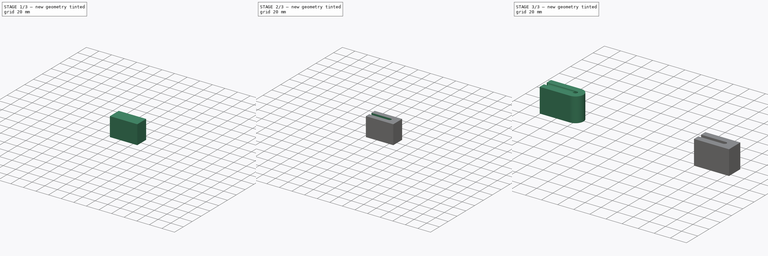
[diagram: build sequence overview — one tinted view per stage of 3, left to right]
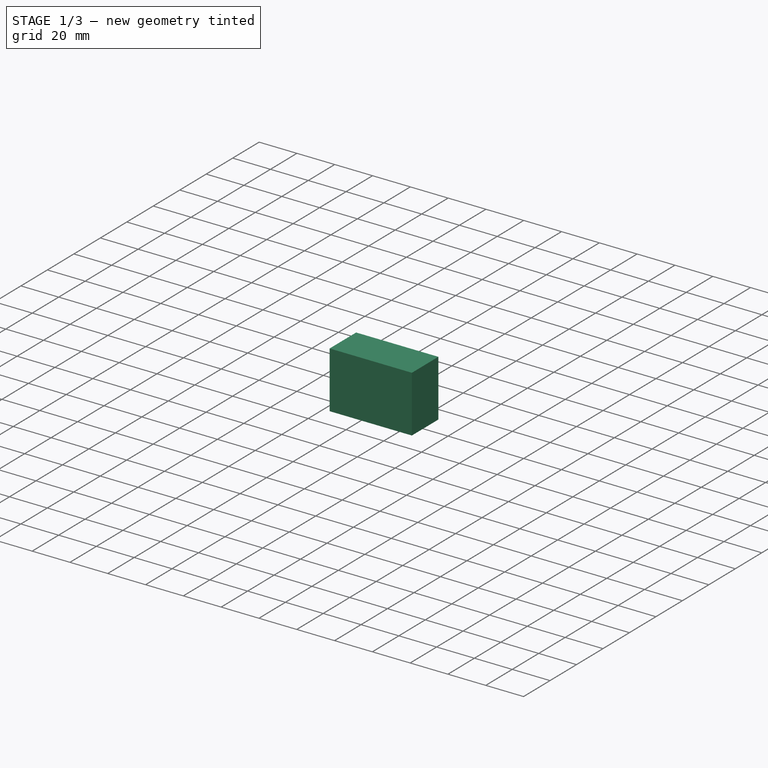
[diagram: stage 1 of 3 — iso view after this stage's code; geometry added in this stage tinted green]
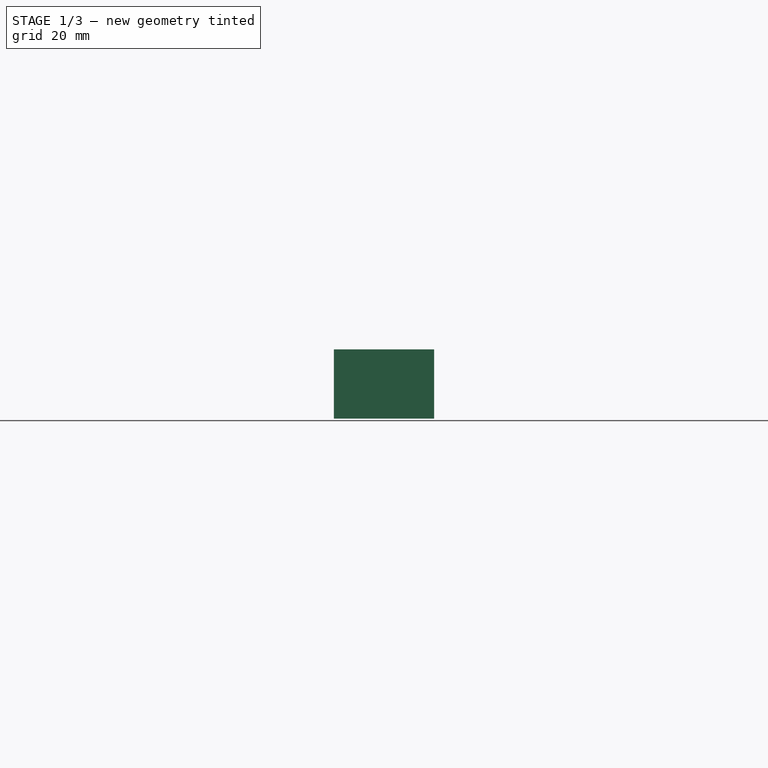
[diagram: stage 1 of 3 — front view after this stage's code; geometry added in this stage tinted green]
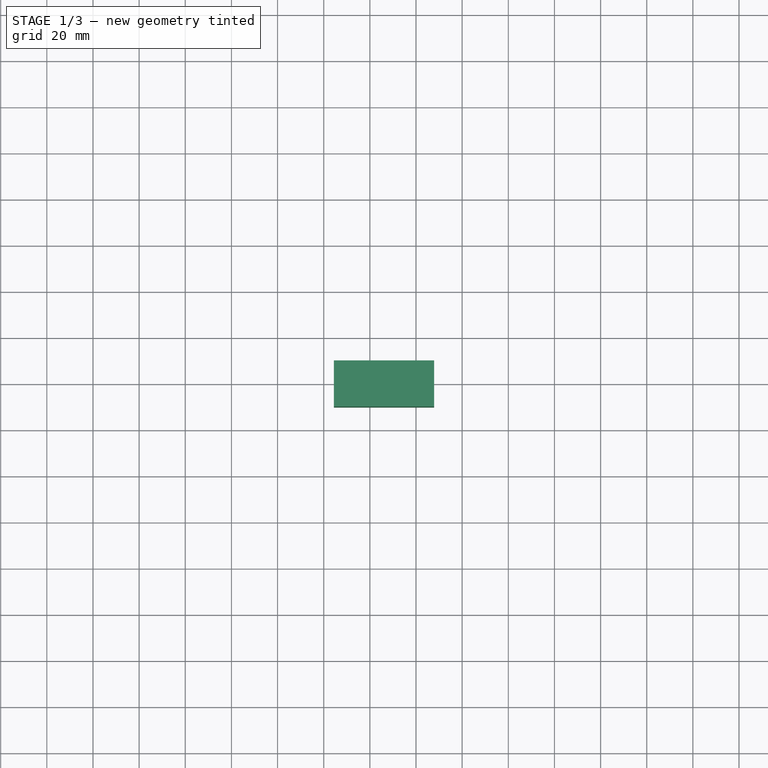
[diagram: stage 1 of 3 — top view after this stage's code; geometry added in this stage tinted green]
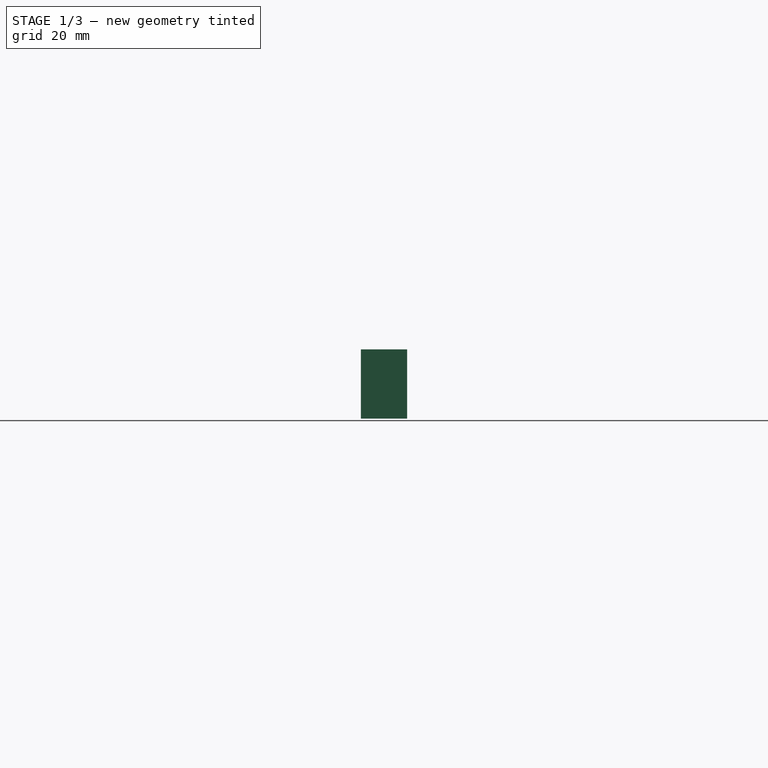
[diagram: stage 1 of 3 — right view after this stage's code; geometry added in this stage tinted green]
FCSTD DOCUMENT  (FreeCAD 1.1R41446 (Git))
Label: Загибалка
License: All rights reserved
LicenseURL: https://en.wikipedia.org/wiki/All_rights_reserved
objects: Sketcher::SketchObject×6, App::Point×4, Part::DatumPlane×4, PartDesign::Body×4, PartDesign::Pad×2, PartDesign::Pocket×2, PartDesign::AdditivePipe×1, PartDesign::SubShapeBinder×1, Part::Cut×1, PartDesign::FeatureBase×1
note: 35 computed .brp shape members not serialized (recipe doc carries the construction recipe); baked Part::Feature solids carry a one-line shape summary decoded from their .brp

FEATURE [PartDesign::Body] Body  label="Тело"
  AllowCompound = false
  Group = -> [Sketch,Pad,DatumPlane,Sketch001,Pocket]
  Origin = -> Origin
  Tip = -> Pocket
FEATURE [App::Point] Origin003  label="Начало координат002"
  Role = Origin
FEATURE [App::Point] Origin005  label="Начало координат004"
  Role = Origin
FEATURE [Sketcher::SketchObject] Sketch002
  ArcFitTolerance = 1e-06
  AttachmentSupport = -> [Origin002]
  ExternalTypes = [0]
  FullyConstrained = false
  MakeInternals = false
  MapMode = 5
  Placement = pos=(0,0,0) rot=(1,0,0;1.5708rad)
  sketch-geometry (6):
    g0: ArcOfCircle CenterX=-37.8284 CenterY=22.5 CenterZ=0 NormalX=0 NormalY=0 NormalZ=1 AngleXU=0 Radius=7.5 StartAngle=0 EndAngle=1.5708
    g1: ArcOfCircle CenterX=-63.5311 CenterY=22.5 CenterZ=0 NormalX=0 NormalY=0 NormalZ=1 AngleXU=0 Radius=7.5 StartAngle=1.5708 EndAngle=3.57792
    g2: LineSegment StartX=-37.8284 StartY=30 StartZ=0 EndX=-63.5311 EndY=30 EndZ=0
    g3: LineSegment StartX=-70.3284 StartY=19.3304 StartZ=0 EndX=-61.3145 EndY=0 EndZ=0
    g4: LineSegment StartX=-30.3284 StartY=22.5 StartZ=0 EndX=-30.3284 EndY=0 EndZ=0
    g5: LineSegment [constr] StartX=-70.3284 StartY=19.3304 StartZ=0 EndX=-59.2332 EndY=19.3304 EndZ=0
  constraints (15):
    c: PointOnObject(g4,g-1)
    c: Horizontal(g2)
    c: Vertical(g4)
    c: Tangent(g2,g0) = -1.5708
    c: Tangent(g2,g1) = -1.5708
    c: Equal(g0,g1)
    c: Tangent(g3,g1) = -1.5708
    c: Tangent(g4,g0) = 1.5708
    c: DistanceX(g1,g0) = 40
    c: Radius(g1) = 7.5
    c: Coincident(g5,g1)
    c: Angle(g3,g5) = 1.13446
    c: Horizontal(g5)
    c: DistanceY(g4,g0) = 30
    c: PointOnObject(g3,g-1)
FEATURE [Part::DatumPlane] DatumPlane001
  AttachmentSupport = -> [Sketch002]
  MapMode = 7
  Placement = pos=(-30.3284,0,0) rot=(0,0,1;0rad)
FEATURE [Sketcher::SketchObject] Sketch003
  ArcFitTolerance = 1e-06
  AttachmentSupport = -> [DatumPlane001]
  ExternalTypes = [0]
  FullyConstrained = true
  MakeInternals = false
  MapMode = 5
  Placement = pos=(-30.3284,0,0) rot=(0,0,1;0rad)
  sketch-geometry (6):
    g0: ArcOfCircle CenterX=-2.5 CenterY=4.353e-13 CenterZ=0 NormalX=0 NormalY=0 NormalZ=1 AngleXU=0 Radius=2.5 StartAngle=1.5708 EndAngle=4.71239
    g1: ArcOfCircle CenterX=2.5 CenterY=0 CenterZ=0 NormalX=0 NormalY=0 NormalZ=1 AngleXU=0 Radius=2.5 StartAngle=4.71239 EndAngle=7.85398
    g2: LineSegment StartX=-2.5 StartY=2.5 StartZ=0 EndX=2.5 EndY=2.5 EndZ=0
    g3: LineSegment StartX=2.5 StartY=-2.5 StartZ=0 EndX=-2.5 EndY=-2.5 EndZ=0
    g4: GeomPoint X=-5 Y=0 Z=0
    g5: LineSegment [constr] StartX=-5 StartY=0 StartZ=0 EndX=5 EndY=0 EndZ=0
  constraints (14):
    c: PointOnObject(g4,g0)
    c: Coincident(g5,g4)
    c: PointOnObject(g5,g1)
    c: Horizontal(g5)
    c: Tangent(g2,g0) = 1.5708
    c: Tangent(g2,g1) = 1.5708
    c: Tangent(g3,g1) = 1.5708
    c: Tangent(g3,g0) = 1.5708
    c: Equal(g1,g0)
    c: Horizontal(g2)
    c: PointOnObject(g1,g5)
    c: DistanceX(g4,g5) = 10
    c: Radius(g0) = 2.5
    c: Symmetric(g4,g5,g-1)
FEATURE [PartDesign::AdditivePipe] AdditivePipe
  AuxiliaryCurvilinear = true
  AuxiliarySpineTangent = false
  Binormal = (0,0,0)
  Mode = 0
  Placement = pos=(-30.3284,0,0) rot=(0,0,1;0rad)
  Profile = -> Sketch003
  Refine = true
  Spine = -> Sketch002
  SpineTangent = false
  Suppressed = false
  Transformation = 0
  Transition = 1
FEATURE [PartDesign::Body] Body001  label="Тело001"
  AllowCompound = false
  Group = -> [Sketch002,DatumPlane001,Sketch003,AdditivePipe]
  Origin = -> Origin002
  Placement = pos=(225.7,0,0) rot=(0,0,1;0rad)
  Tip = -> AdditivePipe
FEATURE [PartDesign::SubShapeBinder] Binder
  BindCopyOnChange = 0
  BindMode = 0
  ClaimChildren = false
  Context = -> Body002 [Binder.]
  Fuse = false
  MakeFace = true
  OffsetFill = false
  OffsetIntersection = false
  OffsetJoinType = 0
  OffsetOpenResult = false
  PartialLoad = false
  Refine = true
  Relative = true
  Support = -> [Body001[AdditivePipe.Face11,AdditivePipe.Face7,AdditivePipe.Face6,AdditivePipe.Face1,AdditivePipe.Face14]]
  _Version = 2
FEATURE [Part::DatumPlane] DatumPlane002
  AttachmentSupport = -> [Binder]
  MapMode = 5
  Placement = pos=(0,0,0) rot=(1,0,0;3.14159rad)
FEATURE [Sketcher::SketchObject] Sketch004
  ArcFitTolerance = 1e-06
  AttachmentSupport = -> [DatumPlane002]
  ExternalGeometry = -> [Binder]
  ExternalTypes = [0,0,0,0,0,0]
  FullyConstrained = true
  MakeInternals = false
  MapMode = 5
  Placement = pos=(0,0,0) rot=(1,0,0;3.14159rad)
  sketch-geometry (8):
    g0: LineSegment StartX=164.385 StartY=-10 StartZ=0 EndX=207.872 EndY=-10 EndZ=0
    g1: LineSegment StartX=207.872 StartY=-10 StartZ=0 EndX=207.872 EndY=10 EndZ=0
    g2: LineSegment StartX=207.872 StartY=10 StartZ=0 EndX=164.385 EndY=10 EndZ=0
    g3: GeomPoint [constr] X=200.372 Y=0 Z=0
    g4: GeomPoint X=164.385 Y=0 Z=0
    g5: LineSegment StartX=164.385 StartY=-10 StartZ=0 EndX=164.385 EndY=10 EndZ=0
    g6: LineSegment [constr] StartX=166.651 StartY=-2.5 StartZ=0 EndX=166.651 EndY=-10 EndZ=0
    g7: LineSegment [constr] StartX=166.651 StartY=2.5 StartZ=0 EndX=166.651 EndY=10 EndZ=0
  constraints (22):
    c: Horizontal(g0)
    c: Coincident(g0,g1)
    c: Vertical(g1)
    c: Coincident(g1,g2)
    c: Horizontal(g2)
    c: DistanceY(g0,g-7) = 7.5
    c: PointOnObject(g3,g-4)
    c: PointOnObject(g3,g-1)
    c: Distance(g3,g1) = 7.5
    c: PointOnObject(g4,g-8)
    c: Coincident(g5,g0)
    c: Coincident(g5,g2)
    c: Vertical(g5)
    c: PointOnObject(g4,g5)
    c: PointOnObject(g4,g-1)
    c: Coincident(g6,g-7)
    c: PointOnObject(g6,g0)
    c: Vertical(g6)
    c: Coincident(g7,g-7)
    c: PointOnObject(g7,g2)
    c: Vertical(g7)
    c: Equal(g7,g6)
FEATURE [PartDesign::Pad] Pad001
  Direction = (0,0,-1)
  Length = 30
  Length2 = 10
  Placement = pos=(0,0,0) rot=(1,0,0;3.14159rad)
  Profile = -> Sketch004
  ReferenceAxis = -> Sketch004 [N_Axis]
  Refine = true
  Reversed = true
  Suppressed = false
  Type = 0
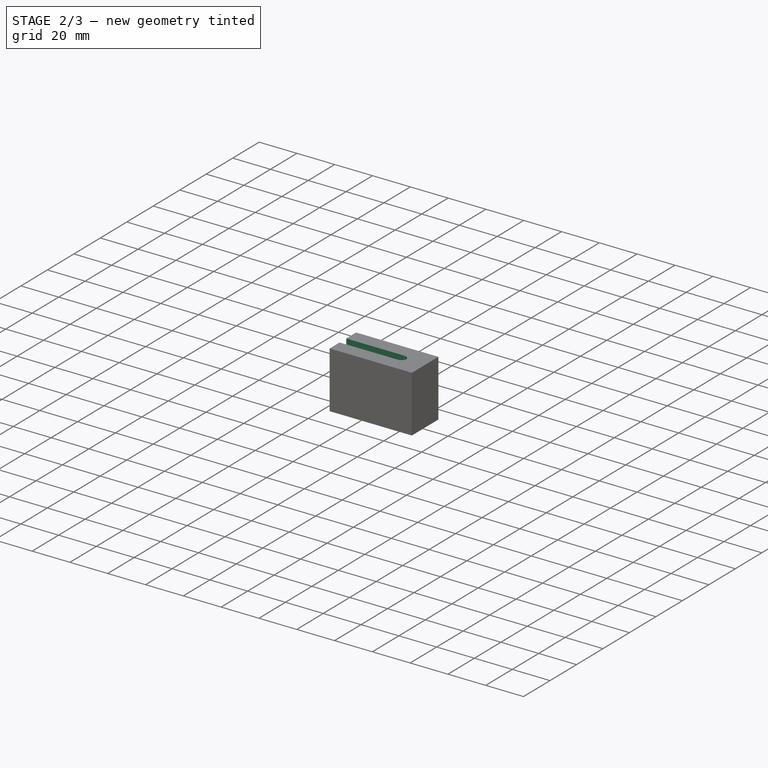
[diagram: stage 2 of 3 — iso view after this stage's code; geometry added in this stage tinted green]
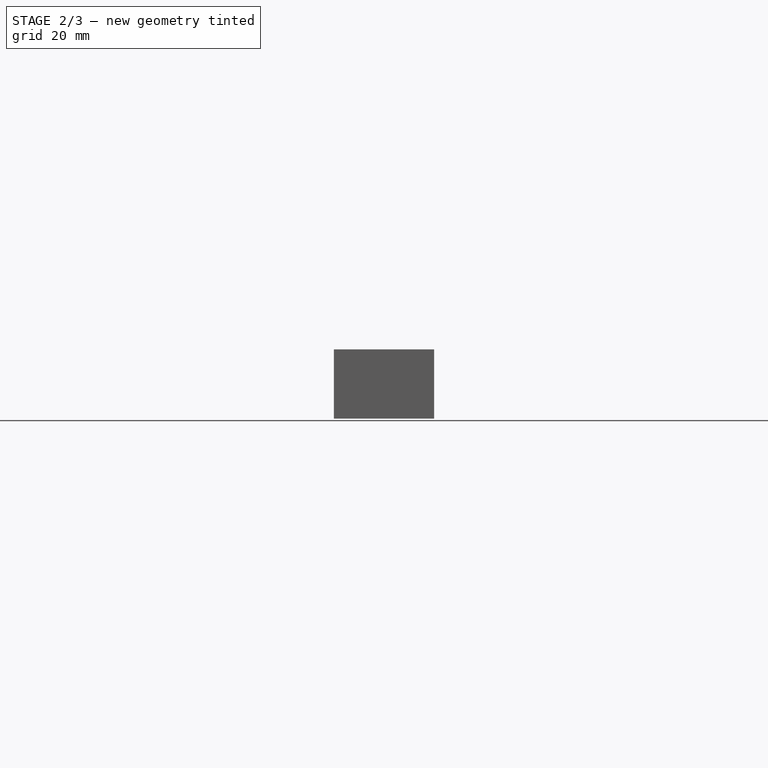
[diagram: stage 2 of 3 — front view after this stage's code; geometry added in this stage tinted green]
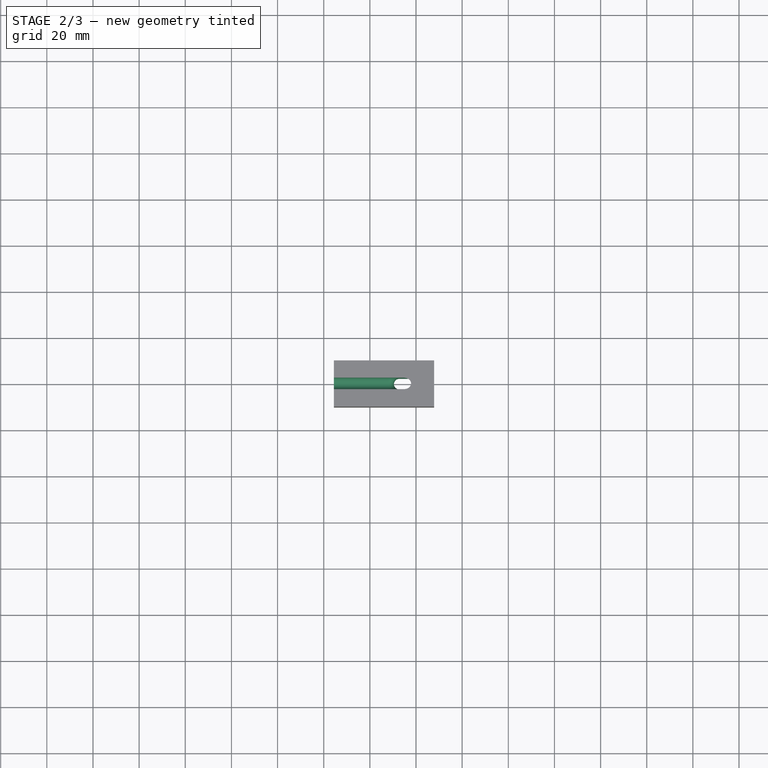
[diagram: stage 2 of 3 — top view after this stage's code; geometry added in this stage tinted green]
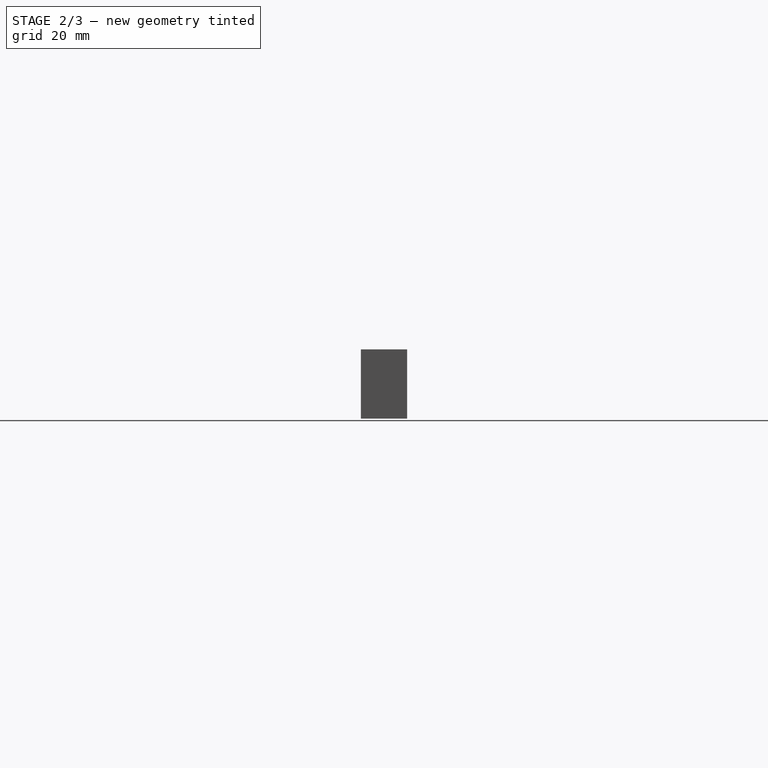
[diagram: stage 2 of 3 — right view after this stage's code; geometry added in this stage tinted green]
FEATURE [PartDesign::Body] Body002  label="Тело002"
  AllowCompound = false
  Group = -> [Binder,DatumPlane002,Sketch004,Pad001]
  Origin = -> Origin004
  Tip = -> Pad001
FEATURE [Part::Cut] Cut
  Base = -> Body002
  Refine = true
  Tool = -> Body001
FEATURE [App::Point] Origin007  label="Начало координат006"
  Role = Origin
FEATURE [PartDesign::FeatureBase] BaseFeature
  BaseFeature = -> Cut
  Suppressed = false
FEATURE [Part::DatumPlane] DatumPlane003
  AttachmentSupport = -> [BaseFeature]
  MapMode = 5
  Placement = pos=(29.3603,-4.56e-14,-62.9633) rot=(0,-1,0;0.436332rad)
FEATURE [Sketcher::SketchObject] Sketch005
  ArcFitTolerance = 1e-06
  AttachmentSupport = -> [DatumPlane003]
  ExternalGeometry = -> [BaseFeature]
  ExternalTypes = [0]
  FullyConstrained = true
  MakeInternals = false
  MapMode = 5
  Placement = pos=(29.3603,-4.56e-14,-62.9633) rot=(0,-1,0;0.436332rad)
FEATURE [PartDesign::Pocket] Pocket001
  BaseFeature = -> BaseFeature
  Direction = (0.42,0,-0.91)
  Length = 5
  Length2 = 5
  Profile = -> Sketch005
  ReferenceAxis = -> Sketch005 [N_Axis]
  Refine = true
  Suppressed = false
  Type = 1
FEATURE [PartDesign::Body] Body003  label="Тело003"
  AllowCompound = false
  BaseFeature = -> Cut
  Group = -> [BaseFeature,DatumPlane003,Sketch005,Pocket001]
  Origin = -> Origin006
  Tip = -> Pocket001
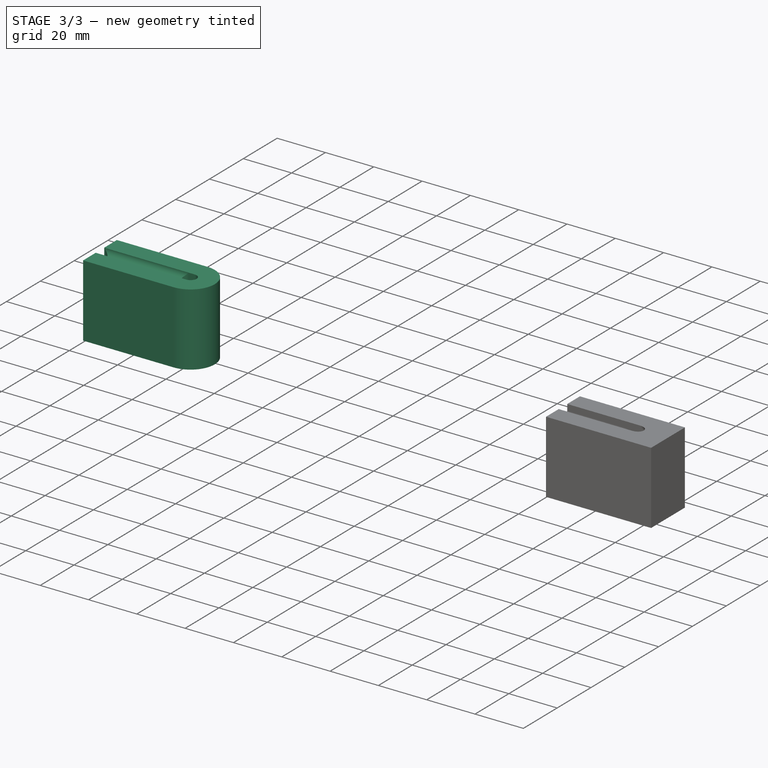
[diagram: stage 3 of 3 — iso view after this stage's code; geometry added in this stage tinted green]
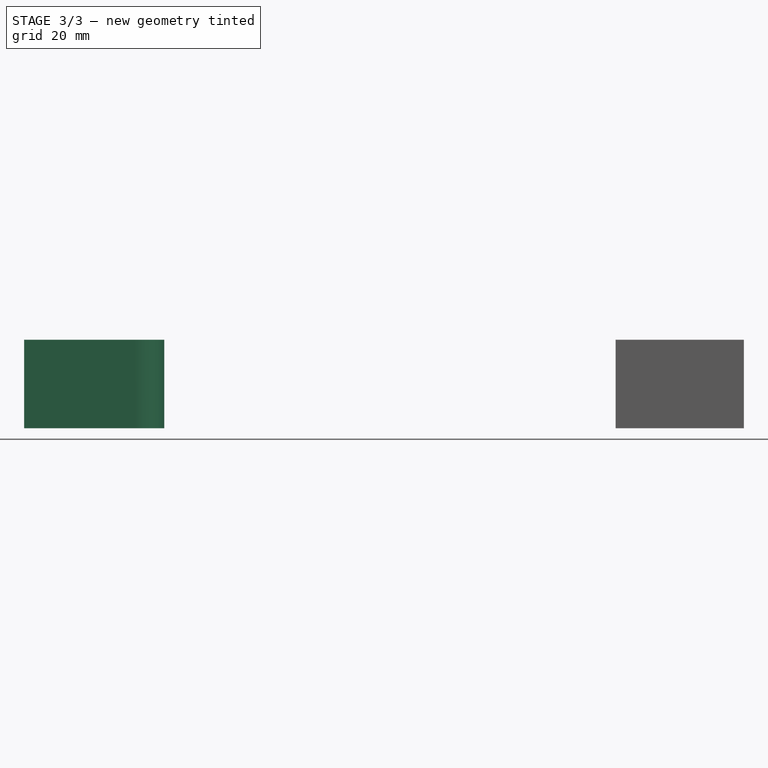
[diagram: stage 3 of 3 — front view after this stage's code; geometry added in this stage tinted green]
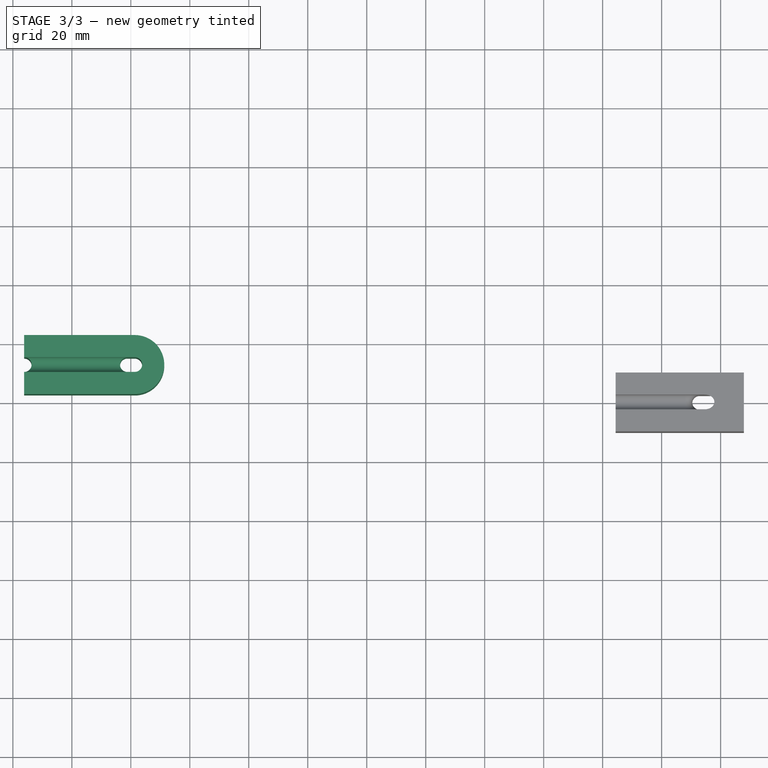
[diagram: stage 3 of 3 — top view after this stage's code; geometry added in this stage tinted green]
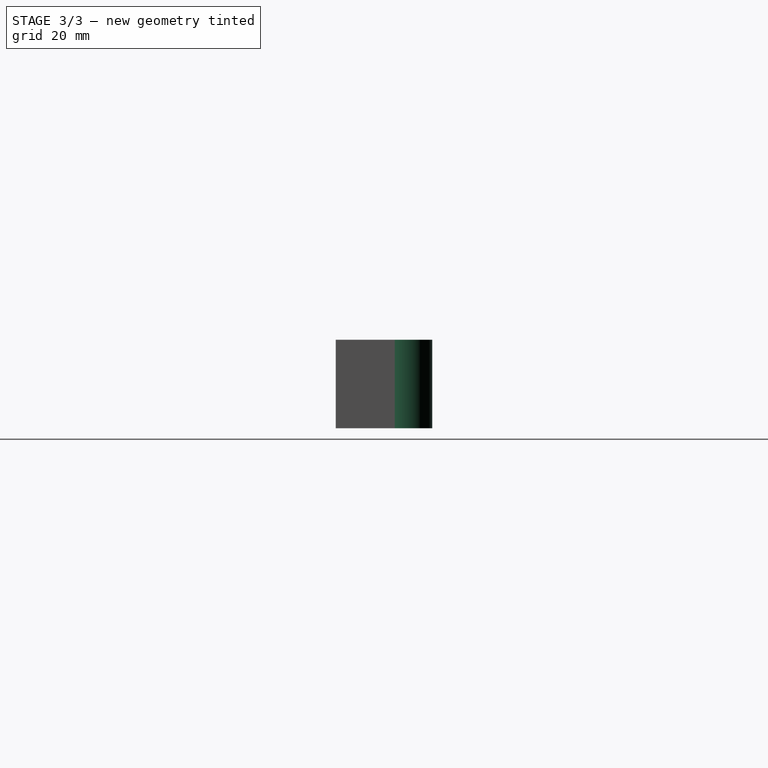
[diagram: stage 3 of 3 — right view after this stage's code; geometry added in this stage tinted green]
FEATURE [App::Point] Origin001  label="Начало координат"
  Role = Origin
FEATURE [Sketcher::SketchObject] Sketch
  ArcFitTolerance = 1e-06
  AttachmentSupport = -> [Origin]
  ExternalTypes = [0]
  FullyConstrained = false
  MakeInternals = false
  MapMode = 5
  sketch-geometry (20):
    g0: ArcOfCircle [constr] CenterX=-38.663 CenterY=12.6825 CenterZ=0 NormalX=0 NormalY=0 NormalZ=1 AngleXU=0 Radius=2.5 StartAngle=1.5708 EndAngle=4.71239
    g1: ArcOfCircle CenterX=-36.163 CenterY=12.6825 CenterZ=0 NormalX=0 NormalY=0 NormalZ=1 AngleXU=0 Radius=2.5 StartAngle=4.71239 EndAngle=7.85398
    g2: ArcOfCircle CenterX=-1.16301 CenterY=12.6825 CenterZ=0 NormalX=0 NormalY=0 NormalZ=1 AngleXU=0 Radius=2.5 StartAngle=1.5708 EndAngle=4.71239
    g3: ArcOfCircle CenterX=1.33699 CenterY=12.6825 CenterZ=0 NormalX=0 NormalY=0 NormalZ=1 AngleXU=0 Radius=2.5 StartAngle=4.71239 EndAngle=7.85398
    g4: ArcOfCircle [constr] CenterX=-38.663 CenterY=12.6825 CenterZ=0 NormalX=0 NormalY=0 NormalZ=1 AngleXU=0 Radius=10 StartAngle=1.5708 EndAngle=4.71239
    g5: ArcOfCircle CenterX=1.33699 CenterY=12.6825 CenterZ=0 NormalX=0 NormalY=0 NormalZ=1 AngleXU=0 Radius=10 StartAngle=4.71239 EndAngle=7.85398
    g6: LineSegment [constr] StartX=-36.163 StartY=10.1825 StartZ=0 EndX=-38.663 EndY=10.1825 EndZ=0
    g7: LineSegment [constr] StartX=-38.663 StartY=15.1825 StartZ=0 EndX=-36.163 EndY=15.1825 EndZ=0
    g8: LineSegment StartX=1.33699 StartY=10.1825 StartZ=0 EndX=-1.16301 EndY=10.1825 EndZ=0
    g9: LineSegment StartX=-1.16301 StartY=15.1825 StartZ=0 EndX=1.33699 EndY=15.1825 EndZ=0
    g10: GeomPoint X=-41.163 Y=12.6825 Z=0
    g11: GeomPoint X=-33.663 Y=12.6825 Z=0
    g12: GeomPoint X=-3.66301 Y=12.6825 Z=0
    g13: GeomPoint X=3.83699 Y=12.6825 Z=0
    g14: LineSegment StartX=1.33699 StartY=22.6825 StartZ=0 EndX=-36.163 EndY=22.6825 EndZ=0
    g15: LineSegment [constr] StartX=-36.163 StartY=22.6825 StartZ=0 EndX=-38.663 EndY=22.6825 EndZ=0
    g16: LineSegment [constr] StartX=-38.663 StartY=2.68251 StartZ=0 EndX=-36.163 EndY=2.68251 EndZ=0
    g17: LineSegment StartX=-36.163 StartY=2.68251 StartZ=0 EndX=1.33699 EndY=2.68251 EndZ=0
    g18: LineSegment StartX=-36.163 StartY=22.6825 StartZ=0 EndX=-36.163 EndY=15.1825 EndZ=0
    g19: LineSegment StartX=-36.163 StartY=2.68251 StartZ=0 EndX=-36.163 EndY=10.1825 EndZ=0
  constraints (44):
    c: Coincident(g4,g0)
    c: Coincident(g5,g3)
    c: Horizontal(g6)
    c: Horizontal(g7)
    c: Horizontal(g9)
    c: Horizontal(g8)
    c: Radius(g1) = 2.5
    c: Equal(g2,g1)
    c: Tangent(g6,g0) = 1.5708
    c: Tangent(g6,g1) = 1.5708
    c: Tangent(g7,g1) = 1.5708
    c: Tangent(g7,g0) = 1.5708
    c: Tangent(g9,g2) = 1.5708
    c: Tangent(g9,g3) = 1.5708
    c: Tangent(g8,g3) = 1.5708
    c: Tangent(g8,g2) = 1.5708
    c: Equal(g7,g9)
    c: PointOnObject(g10,g0)
    c: PointOnObject(g11,g1)
    c: PointOnObject(g12,g2)
    c: PointOnObject(g13,g3)
    c: Horizontal(g13,g3)
    c: Horizontal(g2,g12)
    c: Horizontal(g11,g1)
    c: Horizontal(g0,g10)
    c: DistanceX(g10,g13) = 45
    c: Distance(g12,g1) = 30
    c: DistanceY(g0,g4) = 7.5
    c: Coincident(g14,g15)
    c: Horizontal(g14)
    c: Horizontal(g15)
    c: Coincident(g16,g17)
    c: Horizontal(g16)
    c: Horizontal(g17)
    c: Coincident(g14,g18)
    c: Coincident(g18,g1)
    c: Coincident(g16,g19)
    c: Coincident(g19,g1)
    c: Vertical(g19)
    c: Vertical(g18)
    c: Tangent(g15,g4) = -1.5708
    c: Tangent(g16,g4) = -1.5708
    c: Tangent(g14,g5) = -1.5708
    c: Tangent(g17,g5) = -1.5708
FEATURE [PartDesign::Pad] Pad
  Direction = (0,0,1)
  Length = 30
  Length2 = 10
  Profile = -> Sketch
  ReferenceAxis = -> Sketch [N_Axis]
  Refine = true
  Suppressed = false
  Type = 0
FEATURE [Part::DatumPlane] DatumPlane
  AttachmentSupport = -> [Pad]
  MapMode = 45
  Placement = pos=(-2.75456,12.6825,15) rot=(0.57735,0.57735,0.57735;2.0944rad)
FEATURE [Sketcher::SketchObject] Sketch001
  ArcFitTolerance = 1e-06
  AttachmentSupport = -> [DatumPlane]
  ExternalGeometry = -> [Pad]
  ExternalTypes = [0]
  FullyConstrained = true
  MakeInternals = false
  MapMode = 5
  Placement = pos=(-2.75456,12.6825,15) rot=(0.57735,0.57735,0.57735;2.0944rad)
  sketch-geometry (1):
    g0: ArcOfCircle CenterX=-2e-16 CenterY=15 CenterZ=0 NormalX=0 NormalY=0 NormalZ=1 AngleXU=0 Radius=2.5 StartAngle=3.14159 EndAngle=6.28319
  constraints (3):
    c: Coincident(g0,g-3)
    c: Coincident(g0,g-3)
    c: PointOnObject(g0,g-3)
FEATURE [PartDesign::Pocket] Pocket
  BaseFeature = -> Pad
  Direction = (-1,0,0)
  Length = 33
  Length2 = 2
  Profile = -> Sketch001
  ReferenceAxis = -> Sketch001 [N_Axis]
  Refine = true
  Suppressed = false
  Type = 4
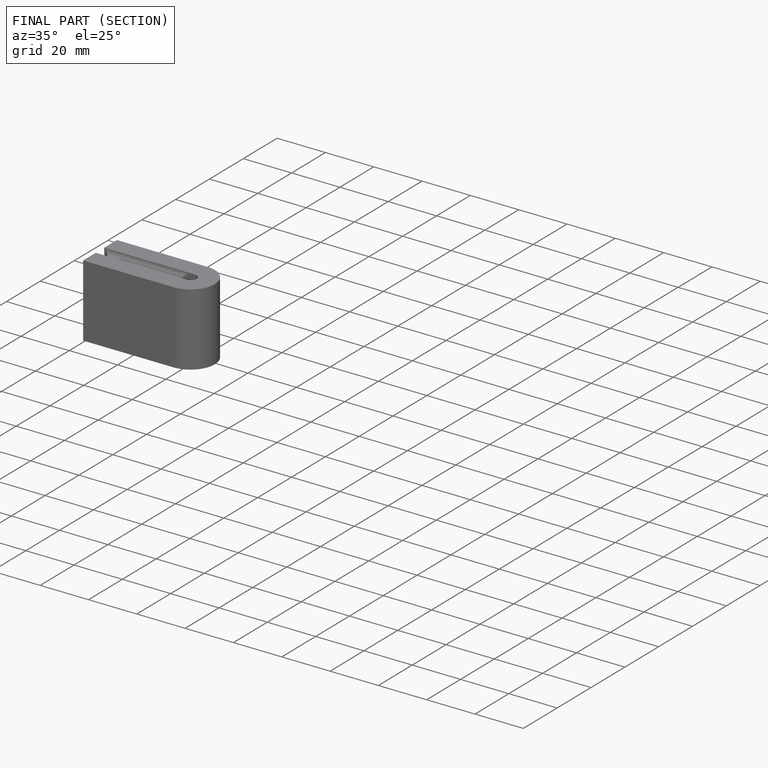
[diagram: finished part — half-section view (interior)]
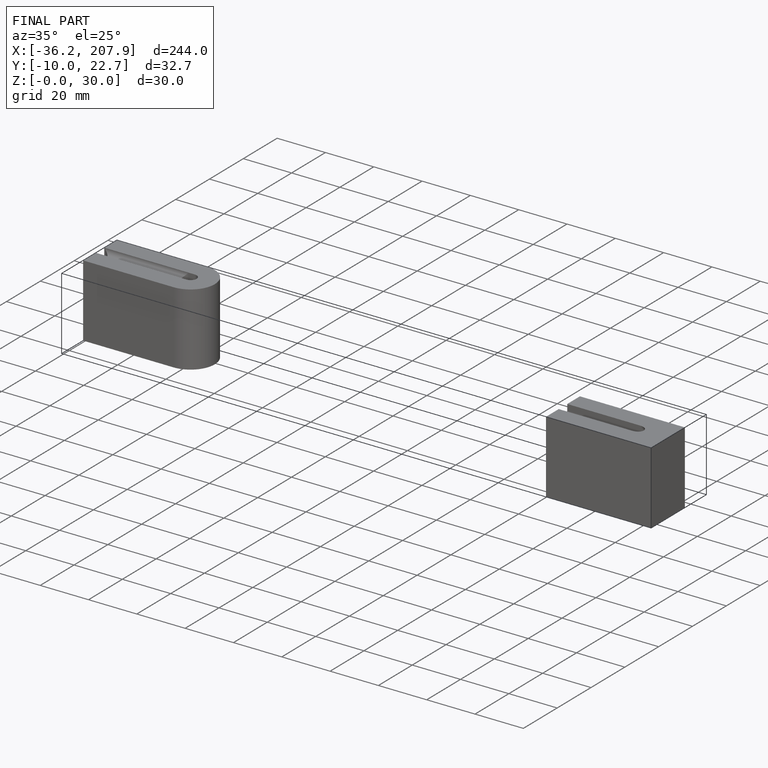
[diagram: finished part — iso view with bounding-box wireframe]
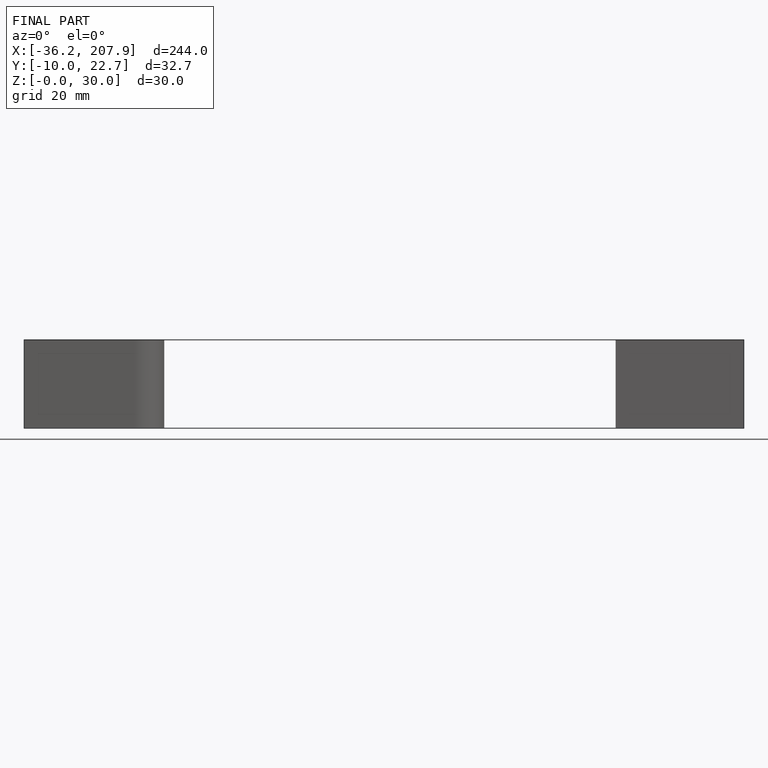
[diagram: finished part — front view with bounding-box wireframe]
